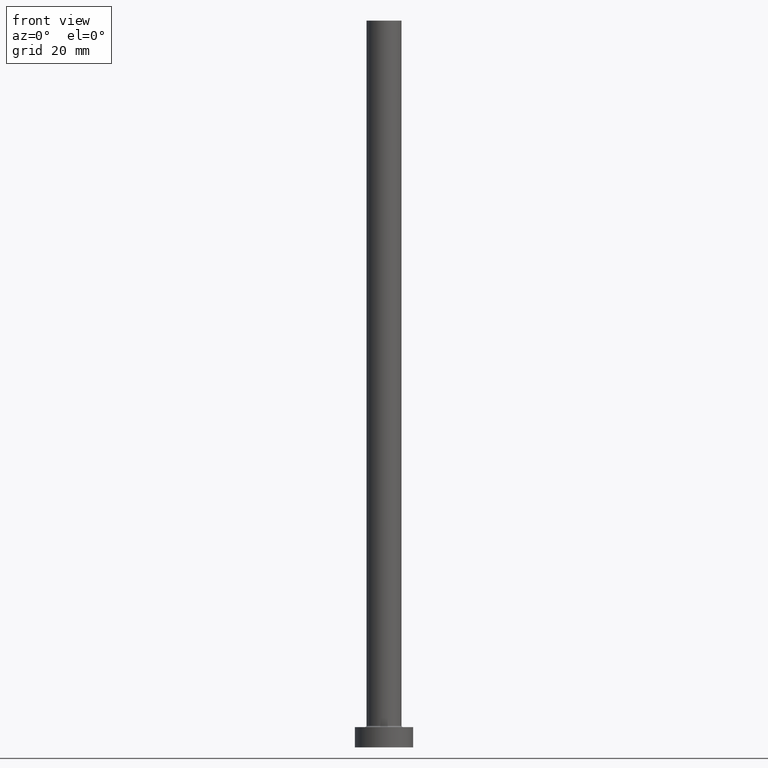
[diagram: clean part render]
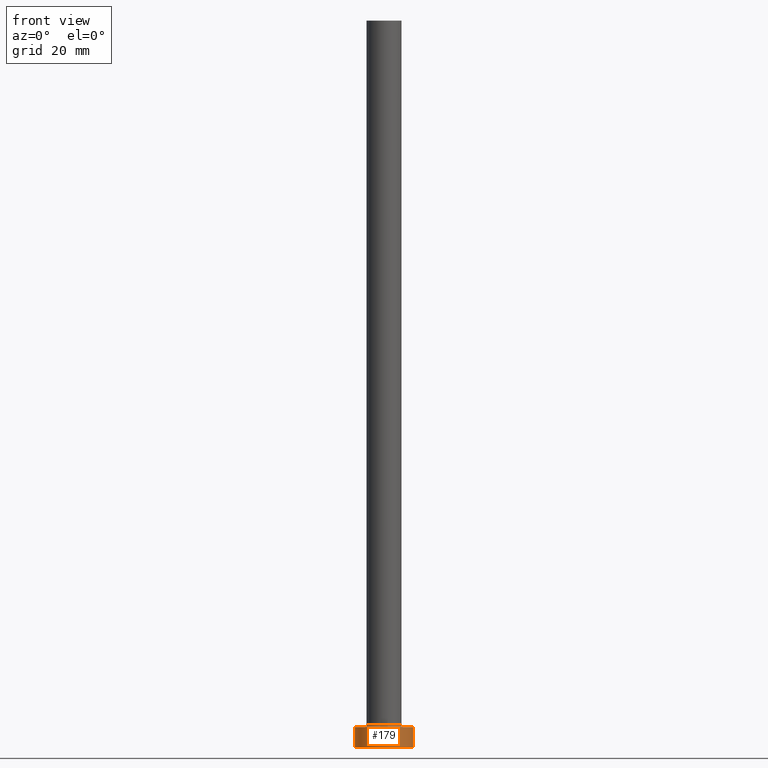
[diagram: same view with one face highlighted and labeled with its STEP entity id]
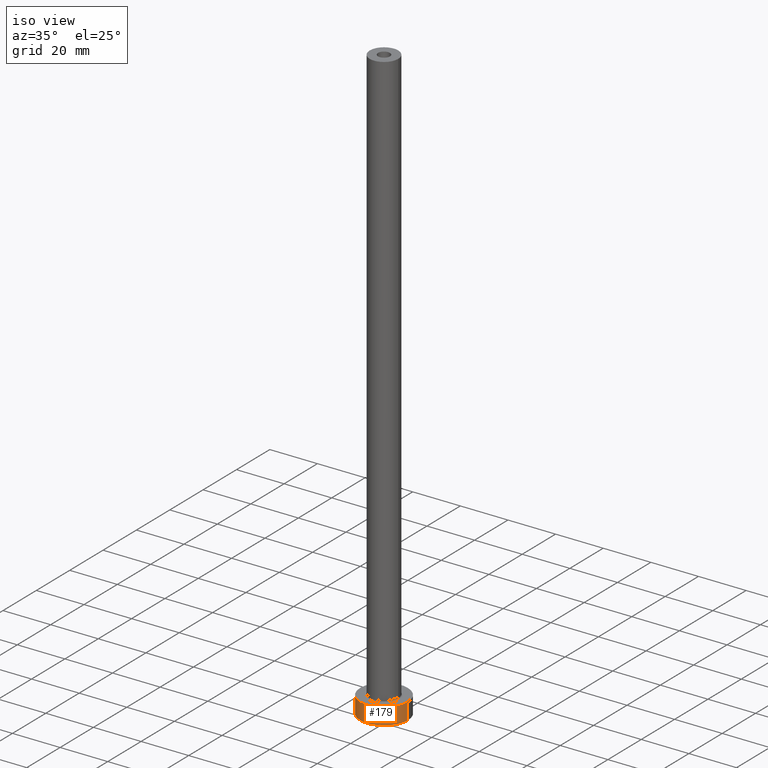
[diagram: same view with one face highlighted and labeled with its STEP entity id]
A machine part, front view. The second image highlights one B-rep face of the part: STEP entity #179.
A second angle (iso view) of the same face is appended — the face is thin or edge-on in the first view.
In plain terms, the highlighted cylindrical surface (edge-blend (fillet) strip) has radius 10 mm, axis along (-0, -0, -1).
Its self-contained STEP definition (entity closure, byte-faithful):
#7 = EDGE_LOOP ( 'NONE', ( #290, #405, #328, #369 ) ) ;
#39 = DIRECTION ( 'NONE',  ( -0.000000000000000000, -0.000000000000000000, -1.000000000000000000 ) ) ;
#63 = CIRCLE ( 'NONE', #317, 10.00000000000000000 ) ;
#79 = CARTESIAN_POINT ( 'NONE',  ( -10.00000000000000000, 0.000000000000000000, 7.000000000000000000 ) ) ;
#105 = CYLINDRICAL_SURFACE ( 'NONE', #333, 10.00000000000000000 ) ;
#111 = DIRECTION ( 'NONE',  ( 0.000000000000000000, 0.000000000000000000, 1.000000000000000000 ) ) ;
#114 = VECTOR ( 'NONE', #359, 1000.000000000000000 ) ;
#140 = DIRECTION ( 'NONE',  ( -1.000000000000000000, 0.000000000000000000, 0.000000000000000000 ) ) ;
#146 = DIRECTION ( 'NONE',  ( 1.000000000000000000, 0.000000000000000000, 0.000000000000000000 ) ) ;
#147 = CARTESIAN_POINT ( 'NONE',  ( 0.000000000000000000, 0.000000000000000000, 7.000000000000000000 ) ) ;
#154 = EDGE_CURVE ( 'NONE', #406, #304, #189, .T. ) ;
#158 = CARTESIAN_POINT ( 'NONE',  ( -10.00000000000000000, 0.000000000000000000, 0.000000000000000000 ) ) ;
#173 = CARTESIAN_POINT ( 'NONE',  ( 10.00000000000000000, 1.224646799147353256E-15, 0.000000000000000000 ) ) ;
#179 = ADVANCED_FACE ( 'NONE', ( #428 ), #105, .T. ) ;
#189 = CIRCLE ( 'NONE', #342, 10.00000000000000000 ) ;
#207 = LINE ( 'NONE', #315, #384 ) ;
#212 = EDGE_CURVE ( 'NONE', #406, #433, #273, .T. ) ;
#223 = CARTESIAN_POINT ( 'NONE',  ( -10.00000000000000000, 0.000000000000000000, 7.000000000000000000 ) ) ;
#228 = EDGE_CURVE ( 'NONE', #304, #294, #207, .T. ) ;
#245 = CARTESIAN_POINT ( 'NONE',  ( 0.000000000000000000, 0.000000000000000000, 7.000000000000000000 ) ) ;
#273 = LINE ( 'NONE', #79, #114 ) ;
#290 = ORIENTED_EDGE ( 'NONE', *, *, #228, .F. ) ;
#294 = VERTEX_POINT ( 'NONE', #173 ) ;
#297 = DIRECTION ( 'NONE',  ( 0.000000000000000000, 0.000000000000000000, 1.000000000000000000 ) ) ;
#304 = VERTEX_POINT ( 'NONE', #316 ) ;
#315 = CARTESIAN_POINT ( 'NONE',  ( 10.00000000000000000, 1.224646799147353256E-15, 7.000000000000000000 ) ) ;
#316 = CARTESIAN_POINT ( 'NONE',  ( 10.00000000000000000, 1.224646799147353256E-15, 7.000000000000000000 ) ) ;
#317 = AXIS2_PLACEMENT_3D ( 'NONE', #398, #297, #441 ) ;
#328 = ORIENTED_EDGE ( 'NONE', *, *, #212, .T. ) ;
#333 = AXIS2_PLACEMENT_3D ( 'NONE', #245, #39, #140 ) ;
#342 = AXIS2_PLACEMENT_3D ( 'NONE', #147, #111, #146 ) ;
#359 = DIRECTION ( 'NONE',  ( -0.000000000000000000, -0.000000000000000000, -1.000000000000000000 ) ) ;
#369 = ORIENTED_EDGE ( 'NONE', *, *, #444, .T. ) ;
#384 = VECTOR ( 'NONE', #458, 1000.000000000000000 ) ;
#398 = CARTESIAN_POINT ( 'NONE',  ( 0.000000000000000000, 0.000000000000000000, 0.000000000000000000 ) ) ;
#405 = ORIENTED_EDGE ( 'NONE', *, *, #154, .F. ) ;
#406 = VERTEX_POINT ( 'NONE', #223 ) ;
#428 = FACE_OUTER_BOUND ( 'NONE', #7, .T. ) ;
#433 = VERTEX_POINT ( 'NONE', #158 ) ;
#441 = DIRECTION ( 'NONE',  ( 1.000000000000000000, 0.000000000000000000, 0.000000000000000000 ) ) ;
#444 = EDGE_CURVE ( 'NONE', #433, #294, #63, .T. ) ;
#458 = DIRECTION ( 'NONE',  ( -0.000000000000000000, -0.000000000000000000, -1.000000000000000000 ) ) ;